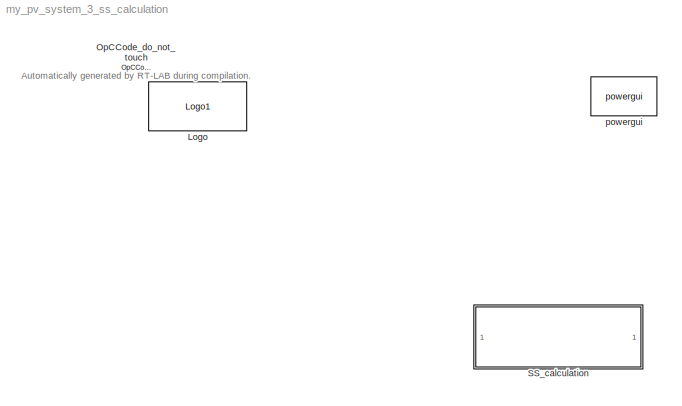
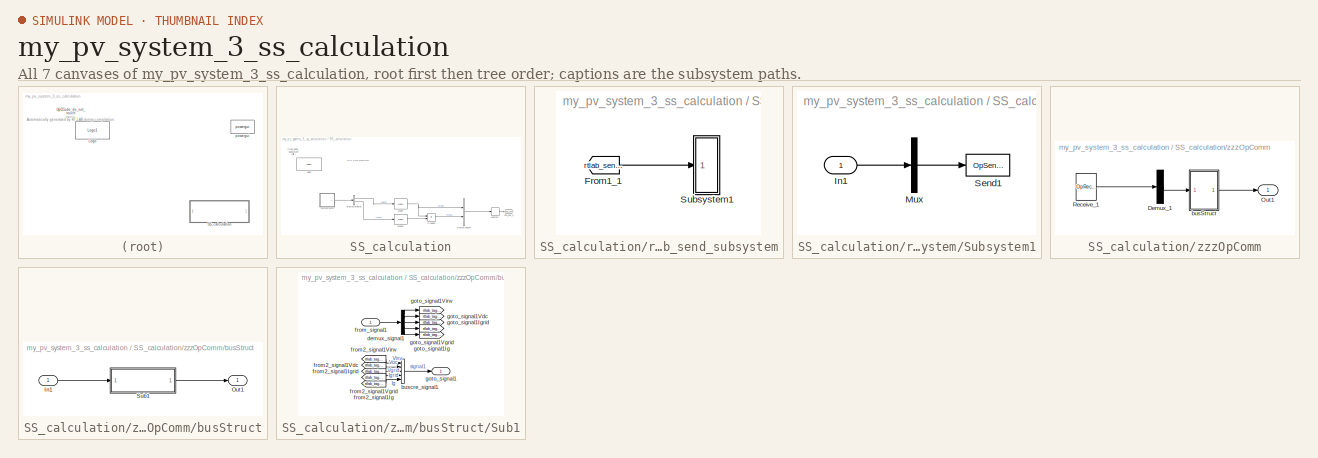
[diagram: thumbnail index - all 7 canvases of the model, root first then tree order]
MODEL my_pv_system_3_ss_calculation
KIND model
BLOCK [Reference] Logo  REF=opal_lib/Logo1
  Ports = []
  SID = 1
  SourceBlock = opal_lib/Logo1
  SourceType = Opal-RT logo
  vide = []
BLOCK [Reference] OpCCode_do_not_touch  REF=opal_lib/Communication/OpCCode
  FunctionWithSeparateData = off
  GeneratePreprocessorConditionals = off
  Ports = []
  SID = 389
  ShowPortLabels = FromPortIcon
  SourceBlock = opal_lib/Communication/OpCCode
  SystemSampleTime = -1
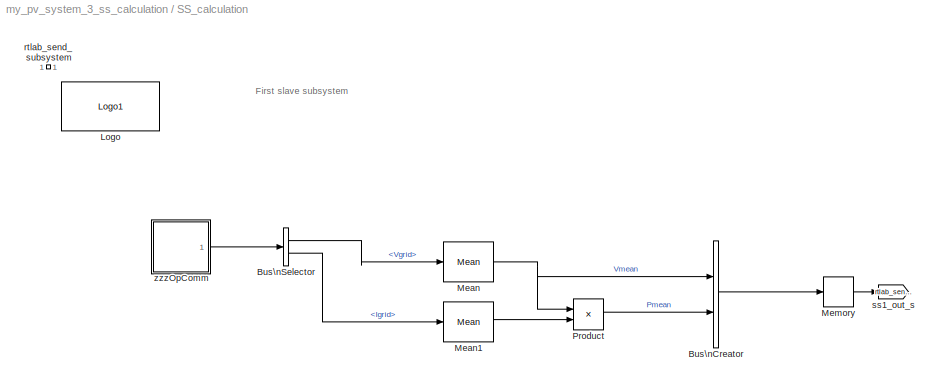
BLOCK [SubSystem] SS_calculation
  Ports = []
  RequestExecContextInheritance = off
  SID = 153
BLOCK [BusCreator] SS_calculation/Bus\nCreator
  DisplayOption = bar
  Inputs = 2
  Ports = [2, 1]
  SID = 357
BLOCK [BusSelector] SS_calculation/Bus\nSelector
  OutputSignals = Vgrid,Igrid
  Ports = [1, 2]
  SID = 358
BLOCK [Reference] SS_calculation/Logo  REF=opal_lib/Logo1
  Ports = []
  SID = 155
  SourceBlock = opal_lib/Logo1
  SourceType = Opal-RT logo
  vide = []
BLOCK [Reference] SS_calculation/Mean  REF=powerlib_meascontrol/Measurements/Mean
  Freq = 50
  Ports = [1, 1]
  SID = 172
  SourceBlock = powerlib_meascontrol/Measurements/Mean
  SourceType = Mean
  Ts = 50e-6
  Vinit = 0
BLOCK [Reference] SS_calculation/Mean1  REF=powerlib_meascontrol/Measurements/Mean
  Freq = 50
  Ports = [1, 1]
  SID = 173
  SourceBlock = powerlib_meascontrol/Measurements/Mean
  SourceType = Mean
  Ts = 50e-6
  Vinit = 0
BLOCK [Memory] SS_calculation/Memory
  InheritSampleTime = on
  SID = 156
BLOCK [Product] SS_calculation/Product
  InputSameDT = off
  OutDataTypeStr = Inherit: Inherit via internal rule
  Ports = [2, 1]
  RndMeth = Floor
  SID = 174
  SaturateOnIntegerOverflow = off
BLOCK [SubSystem] SS_calculation/rtlab_send_subsystem
  Ports = []
  Priority = -100
  RequestExecContextInheritance = off
  SID = 434
BLOCK [From] SS_calculation/rtlab_send_subsystem/From1_1
  GotoTag = rtlab_send_1
  SID = 438
BLOCK [SubSystem] SS_calculation/rtlab_send_subsystem/Subsystem1
  Ports = [1]
  RequestExecContextInheritance = off
  SID = 435
BLOCK [Inport] SS_calculation/rtlab_send_subsystem/Subsystem1/In1
  IconDisplay = Port number
  SID = 439
BLOCK [Mux] SS_calculation/rtlab_send_subsystem/Subsystem1/Mux
  Inputs = 1
  Ports = [1, 1]
  SID = 436
BLOCK [Reference] SS_calculation/rtlab_send_subsystem/Subsystem1/Send1  REF=opal_lib/Communication/OpSendToNT
  Acqu_group = 1
  Ports = [1]
  SID = 437
  SourceBlock = opal_lib/Communication/OpSendToNT
  SourceType = OPAL Send Icon
BLOCK [Goto] SS_calculation/ss1_out_s
  GotoTag = rtlab_send_1
  SID = 440
  TagVisibility = global
BLOCK [SubSystem] SS_calculation/zzzOpComm
  Ports = [0, 1]
  RequestExecContextInheritance = off
  SID = 412
BLOCK [Demux] SS_calculation/zzzOpComm/Demux_1
  Outputs = [5]
  Ports = [1, 1]
  SID = 413
BLOCK [Outport] SS_calculation/zzzOpComm/Out1
  IconDisplay = Port number
  SID = 433
BLOCK [Reference] SS_calculation/zzzOpComm/Receive_1  REF=opal_lib/Communication/OpRec_rt
  Data_width = 5
  Ports = [0, 1]
  SID = 414
  SourceBlock = opal_lib/Communication/OpRec_rt
  SourceType = OPAL Recv_rt Icon
  src = 1
  st = 5e-05
BLOCK [SubSystem] SS_calculation/zzzOpComm/busStruct
  Ports = [1, 1]
  RequestExecContextInheritance = off
  SID = 415
BLOCK [Inport] SS_calculation/zzzOpComm/busStruct/In1
  IconDisplay = Port number
  SID = 416
BLOCK [Outport] SS_calculation/zzzOpComm/busStruct/Out1
  IconDisplay = Port number
  SID = 432
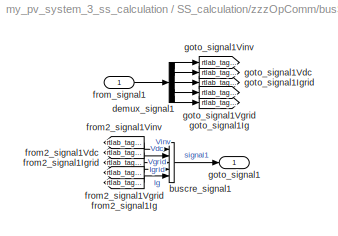
BLOCK [SubSystem] SS_calculation/zzzOpComm/busStruct/Sub1
  Ports = [1, 1]
  RequestExecContextInheritance = off
  SID = 417
BLOCK [BusCreator] SS_calculation/zzzOpComm/busStruct/Sub1/buscre_signal1
  Inputs = 5
  Ports = [5, 1]
  SID = 419
BLOCK [Demux] SS_calculation/zzzOpComm/busStruct/Sub1/demux_signal1
  Outputs = [1  1  1  1  1]
  Ports = [1, 5]
  SID = 420
BLOCK [From] SS_calculation/zzzOpComm/busStruct/Sub1/from2_signal1Ig
  GotoTag = rtlab_tag_5
  SID = 421
BLOCK [From] SS_calculation/zzzOpComm/busStruct/Sub1/from2_signal1Igrid
  GotoTag = rtlab_tag_3
  SID = 422
BLOCK [From] SS_calculation/zzzOpComm/busStruct/Sub1/from2_signal1Vdc
  GotoTag = rtlab_tag_2
  SID = 423
BLOCK [From] SS_calculation/zzzOpComm/busStruct/Sub1/from2_signal1Vgrid
  GotoTag = rtlab_tag_4
  SID = 424
BLOCK [From] SS_calculation/zzzOpComm/busStruct/Sub1/from2_signal1Vinv
  GotoTag = rtlab_tag_1
  SID = 425
BLOCK [Inport] SS_calculation/zzzOpComm/busStruct/Sub1/from_signal1
  IconDisplay = Port number
  SID = 418
BLOCK [Outport] SS_calculation/zzzOpComm/busStruct/Sub1/goto_signal1
  IconDisplay = Port number
  SID = 431
BLOCK [Goto] SS_calculation/zzzOpComm/busStruct/Sub1/goto_signal1Ig
  GotoTag = rtlab_tag_5
  SID = 426
BLOCK [Goto] SS_calculation/zzzOpComm/busStruct/Sub1/goto_signal1Igrid
  GotoTag = rtlab_tag_3
  SID = 427
BLOCK [Goto] SS_calculation/zzzOpComm/busStruct/Sub1/goto_signal1Vdc
  GotoTag = rtlab_tag_2
  SID = 428
BLOCK [Goto] SS_calculation/zzzOpComm/busStruct/Sub1/goto_signal1Vgrid
  GotoTag = rtlab_tag_4
  SID = 429
BLOCK [Goto] SS_calculation/zzzOpComm/busStruct/Sub1/goto_signal1Vinv
  GotoTag = rtlab_tag_1
  SID = 430
BLOCK [Reference] powergui  REF=powerlib/powergui
  DisableRonSwitches = off
  DisableSnubberDevices = off
  DisableVfSwitches = off
  DisplayEquations = off
  DisplayStyle = 1
  EnableUseOfTLC = off
  ErrMax = 1e-4
  Frange = [0:2:500]
  FreqAxis = off
  FunctionMessages = off
  HookPort = off
  Interpol = off
  Iterations = 50
  MaxFrequency = 1000
  Pbase = 100e6
  Ports = []
  ResistiveCurrentMeasurement = off
  RestoreLinks = warning
  RmsSteady = 1
  SID = 327
  SPID = off
  SampleTime = 5e-05
  ShowGrid = off
  SolverType = Tustin/Backward Euler (TBE)
  SourceBlock = powerlib/powergui
  SourceType = PSB option menu block
  StartTime = 0.0
  SwTol = 0
  Ts = 100
  UnitsV = kV
  UnitsW = MW
  UserData = DataTag0
  UserDataPersistent = on
  Xlog = on
  Ylog = off
  ZoomFFT = off
  cycles = 1
  display = off
  echomessages = off
  frequency = 60
  frequencyindice = 50
  frequencyindicesteady = 1
  fundamental = 60
  methode = off
  save = off
  structure = 0
  variable = ZData
  x0status = blocks
ANNOTATION (root): Automatically generated by RT-LAB during compilation.
ANNOTATION SS_calculation: First slave subsystem
LINE SS_calculation/Bus\nCreator:1 -> SS_calculation/Memory:1
LINE SS_calculation/Bus\nSelector:1 -> SS_calculation/Mean:1
LINE SS_calculation/Bus\nSelector:2 -> SS_calculation/Mean1:1
LINE SS_calculation/Mean1:1 -> SS_calculation/Product:2
NET SS_calculation/Mean:1 -> SS_calculation/Bus\nCreator:1, SS_calculation/Product:1
LINE SS_calculation/Memory:1 -> SS_calculation/ss1_out_s:1
LINE SS_calculation/Product:1 -> SS_calculation/Bus\nCreator:2
LINE SS_calculation/rtlab_send_subsystem/From1_1:1 -> SS_calculation/rtlab_send_subsystem/Subsystem1:1
LINE SS_calculation/rtlab_send_subsystem/Subsystem1/In1:1 -> SS_calculation/rtlab_send_subsystem/Subsystem1/Mux:1
LINE SS_calculation/rtlab_send_subsystem/Subsystem1/Mux:1 -> SS_calculation/rtlab_send_subsystem/Subsystem1/Send1:1
LINE SS_calculation/zzzOpComm/Demux_1:1 -> SS_calculation/zzzOpComm/busStruct:1
LINE SS_calculation/zzzOpComm/Receive_1:1 -> SS_calculation/zzzOpComm/Demux_1:1
LINE SS_calculation/zzzOpComm/busStruct/In1:1 -> SS_calculation/zzzOpComm/busStruct/Sub1:1
LINE SS_calculation/zzzOpComm/busStruct/Sub1/buscre_signal1:1 -> SS_calculation/zzzOpComm/busStruct/Sub1/goto_signal1:1
LINE SS_calculation/zzzOpComm/busStruct/Sub1/demux_signal1:1 -> SS_calculation/zzzOpComm/busStruct/Sub1/goto_signal1Vinv:1
LINE SS_calculation/zzzOpComm/busStruct/Sub1/demux_signal1:2 -> SS_calculation/zzzOpComm/busStruct/Sub1/goto_signal1Vdc:1
LINE SS_calculation/zzzOpComm/busStruct/Sub1/demux_signal1:3 -> SS_calculation/zzzOpComm/busStruct/Sub1/goto_signal1Igrid:1
LINE SS_calculation/zzzOpComm/busStruct/Sub1/demux_signal1:4 -> SS_calculation/zzzOpComm/busStruct/Sub1/goto_signal1Vgrid:1
LINE SS_calculation/zzzOpComm/busStruct/Sub1/demux_signal1:5 -> SS_calculation/zzzOpComm/busStruct/Sub1/goto_signal1Ig:1
LINE SS_calculation/zzzOpComm/busStruct/Sub1/from2_signal1Ig:1 -> SS_calculation/zzzOpComm/busStruct/Sub1/buscre_signal1:5
LINE SS_calculation/zzzOpComm/busStruct/Sub1/from2_signal1Igrid:1 -> SS_calculation/zzzOpComm/busStruct/Sub1/buscre_signal1:3
LINE SS_calculation/zzzOpComm/busStruct/Sub1/from2_signal1Vdc:1 -> SS_calculation/zzzOpComm/busStruct/Sub1/buscre_signal1:2
LINE SS_calculation/zzzOpComm/busStruct/Sub1/from2_signal1Vgrid:1 -> SS_calculation/zzzOpComm/busStruct/Sub1/buscre_signal1:4
LINE SS_calculation/zzzOpComm/busStruct/Sub1/from2_signal1Vinv:1 -> SS_calculation/zzzOpComm/busStruct/Sub1/buscre_signal1:1
LINE SS_calculation/zzzOpComm/busStruct/Sub1/from_signal1:1 -> SS_calculation/zzzOpComm/busStruct/Sub1/demux_signal1:1
LINE SS_calculation/zzzOpComm/busStruct/Sub1:1 -> SS_calculation/zzzOpComm/busStruct/Out1:1
LINE SS_calculation/zzzOpComm/busStruct:1 -> SS_calculation/zzzOpComm/Out1:1
LINE SS_calculation/zzzOpComm:1 -> SS_calculation/Bus\nSelector:1
note: NET lines group one-source signal fan-out (src -> all destinations, sorted); 1:1 wires keep LINE
